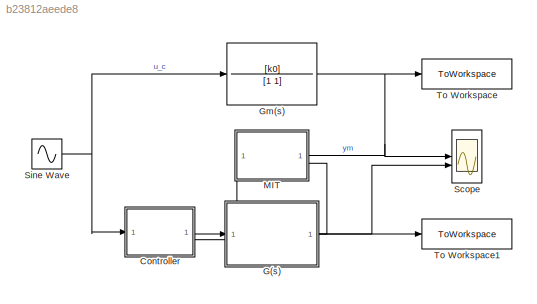
MODEL slx_b23812aeede8
KIND model
CONFIG AbsTol = auto
CONFIG EnableMultiTasking = off
CONFIG FixedStep = sample_time
CONFIG MaxStep = auto
CONFIG MinStep = auto
CONFIG PreLoadFcn = run('example1.m')
CONFIG RelTol = 1e-3
CONFIG SampleTimeConstraint = Unconstrained
CONFIG SolverName = FixedStepAuto
CONFIG StartTime = start_time
CONFIG StopTime = stop_time
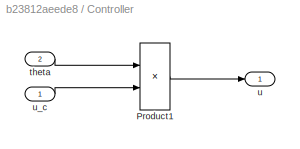
BLOCK [SubSystem] Controller
  PortSchema = {"entries":[{"content":{"sides":[{"content":{"connectorIds":["In1"]},"type":"ConnectorPlacement.EquallySpacedRectSide","uuid":"b791fd57-3a4d-44f9-8985-495cef545312"},{"content":{"connectorIds":["Out1"],"side":"RIGHT"},"type":"ConnectorPlacement.EquallySpacedRectSide","uuid":"68bf27b1-b1ff-4d62-85c7-49065bb9fd30"},{"content":{"connectorIds":["In2"],"side":"TOP"},"type":"ConnectorPlacement.EquallySp...<+245ch>
BLOCK [Product] Controller/Product1
BLOCK [Inport] Controller/theta
  Port = 2
BLOCK [Outport] Controller/u
BLOCK [Inport] Controller/u_c
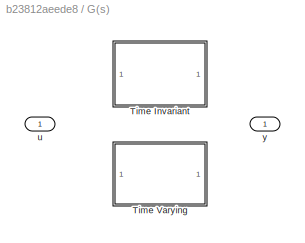
BLOCK [SubSystem] G(s)
  LabelModeActiveChoice = Varying
  Variant = on
  VariantControl = Choice
  VariantControlMode = label
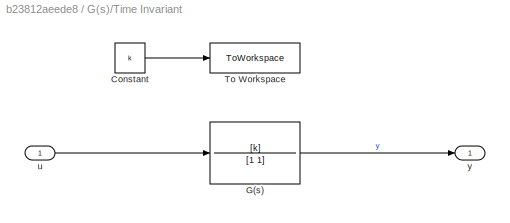
BLOCK [SubSystem] G(s)/Time Invariant
  VariantControl = Invariant
BLOCK [Constant] G(s)/Time Invariant/Constant
  Value = k
BLOCK [TransferFcn] G(s)/Time Invariant/G(s)
  Denominator = [1 1]
  Numerator = [k]
BLOCK [ToWorkspace] G(s)/Time Invariant/To Workspace
  FixptAsFi = on
  MaxDataPoints = inf
  SampleTime = -1
  SaveFormat = Timeseries
  VariableName = k
BLOCK [Inport] G(s)/Time Invariant/u
BLOCK [Outport] G(s)/Time Invariant/y
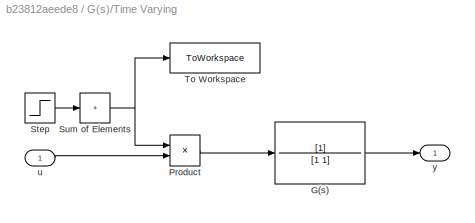
BLOCK [SubSystem] G(s)/Time Varying
  VariantControl = Varying
BLOCK [TransferFcn] G(s)/Time Varying/G(s)
  Denominator = [1 1]
BLOCK [Product] G(s)/Time Varying/Product
BLOCK [Step] G(s)/Time Varying/Step
  After = [2 -1.5]
  Before = [1 0]
  SampleTime = 0
  Time = [stop_time/3, stop_time*2/3]
BLOCK [Sum] G(s)/Time Varying/Sum of Elements
  IconShape = rectangular
  Inputs = +
BLOCK [ToWorkspace] G(s)/Time Varying/To Workspace
  FixptAsFi = on
  MaxDataPoints = inf
  SampleTime = -1
  SaveFormat = Timeseries
  VariableName = k
BLOCK [Inport] G(s)/Time Varying/u
BLOCK [Outport] G(s)/Time Varying/y
BLOCK [Inport] G(s)/u
BLOCK [Outport] G(s)/y
BLOCK [TransferFcn] Gm(s)
  Denominator = [1 1]
  Numerator = [k0]
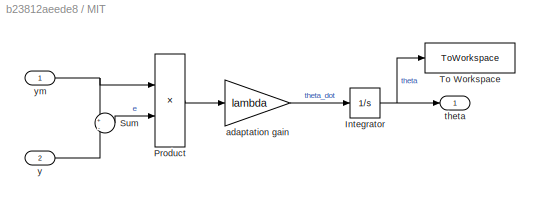
BLOCK [SubSystem] MIT
  PortSchema = {"entries":[{"content":{"sides":[{"content":{"connectorIds":["Out1"]},"type":"ConnectorPlacement.EquallySpacedRectSide","uuid":"ee28cc31-6479-493c-b12f-898d8a96a914"},{"content":{"connectorIds":["In1","In2"],"side":"RIGHT"},"type":"ConnectorPlacement.EquallySpacedRectSide","uuid":"1e85afc1-68eb-4f3e-8a01-4a66bb1e319d"},{"content":{"side":"TOP"},"type":"ConnectorPlacement.EquallySpacedRectSide","uu...<+354ch>
BLOCK [Integrator] MIT/Integrator
BLOCK [Product] MIT/Product
BLOCK [Sum] MIT/Sum
  Inputs = +|-
BLOCK [ToWorkspace] MIT/To Workspace
  FixptAsFi = on
  MaxDataPoints = inf
  SampleTime = -1
  SaveFormat = Timeseries
  VariableName = Theta
BLOCK [Gain] MIT/adaptation gain
  Gain = lambda
BLOCK [Outport] MIT/theta
BLOCK [Inport] MIT/y
  Port = 2
BLOCK [Inport] MIT/ym
BLOCK [Scope] Scope
  Floating = off
  NumInputPorts = 2
  ScopeSpecificationString = Simulink.scopes.TimeScopeBlockCfg('CurrentConfiguration', extmgr.ConfigurationSet(extmgr.Configuration('Core','General UI',true),extmgr.Configuration('Core','Source UI',true),extmgr.Configuration('Sources','WiredSimulink',true),extmgr.Configuration('Visuals','Time Domain',true,'SerializedDisplays',{struct('MinYLimReal','-2.30417','MaxYLimReal','2.39401','YLabelReal','','MinYLimMag','0.00000','MaxY...<+1329ch>
BLOCK [Sin] Sine Wave
  SampleTime = 0
BLOCK [ToWorkspace] To Workspace
  FixptAsFi = on
  MaxDataPoints = inf
  SampleTime = -1
  SaveFormat = Timeseries
  VariableName = Ym
BLOCK [ToWorkspace] To Workspace1
  FixptAsFi = on
  MaxDataPoints = inf
  SampleTime = -1
  SaveFormat = Timeseries
  VariableName = Y
LINE Controller/Product1:1 -> Controller/u:1
LINE Controller/theta:1 -> Controller/Product1:1
LINE Controller/u_c:1 -> Controller/Product1:2
LINE Controller:1 -> G(s):1
LINE G(s)/Time Invariant/Constant:1 -> G(s)/Time Invariant/To Workspace:1
LINE G(s)/Time Invariant/G(s):1 -> G(s)/Time Invariant/y:1
LINE G(s)/Time Invariant/u:1 -> G(s)/Time Invariant/G(s):1
LINE G(s)/Time Varying/G(s):1 -> G(s)/Time Varying/y:1
LINE G(s)/Time Varying/Product:1 -> G(s)/Time Varying/G(s):1
LINE G(s)/Time Varying/Step:1 -> G(s)/Time Varying/Sum of Elements:1
NET G(s)/Time Varying/Sum of Elements:1 -> G(s)/Time Varying/Product:1, G(s)/Time Varying/To Workspace:1
LINE G(s)/Time Varying/u:1 -> G(s)/Time Varying/Product:2
NET G(s):1 -> MIT:2, Scope:2, To Workspace1:1
NET Gm(s):1 -> MIT:1, Scope:1, To Workspace:1
NET MIT/Integrator:1 -> MIT/To Workspace:1, MIT/theta:1
LINE MIT/Product:1 -> MIT/adaptation gain:1
LINE MIT/Sum:1 -> MIT/Product:2
LINE MIT/adaptation gain:1 -> MIT/Integrator:1
LINE MIT/y:1 -> MIT/Sum:2
NET MIT/ym:1 -> MIT/Product:1, MIT/Sum:1
LINE MIT:1 -> Controller:2
NET Sine Wave:1 -> Controller:1, Gm(s):1
note: NET lines group one-source signal fan-out (src -> all destinations, sorted); 1:1 wires keep LINE
